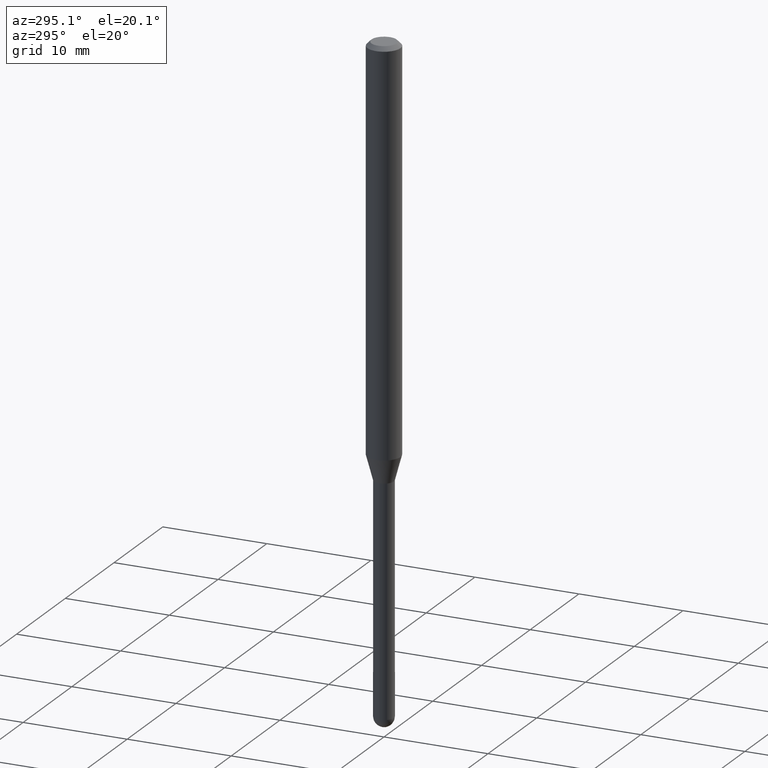
[diagram: clean part render]
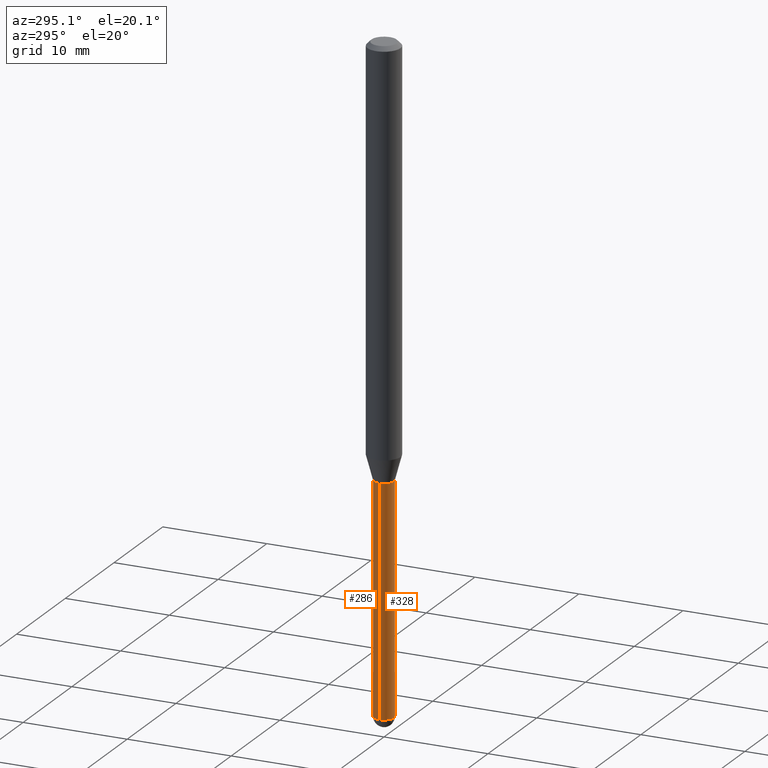
[diagram: same view with one multi-face feature highlighted, each face labeled with its STEP entity id]
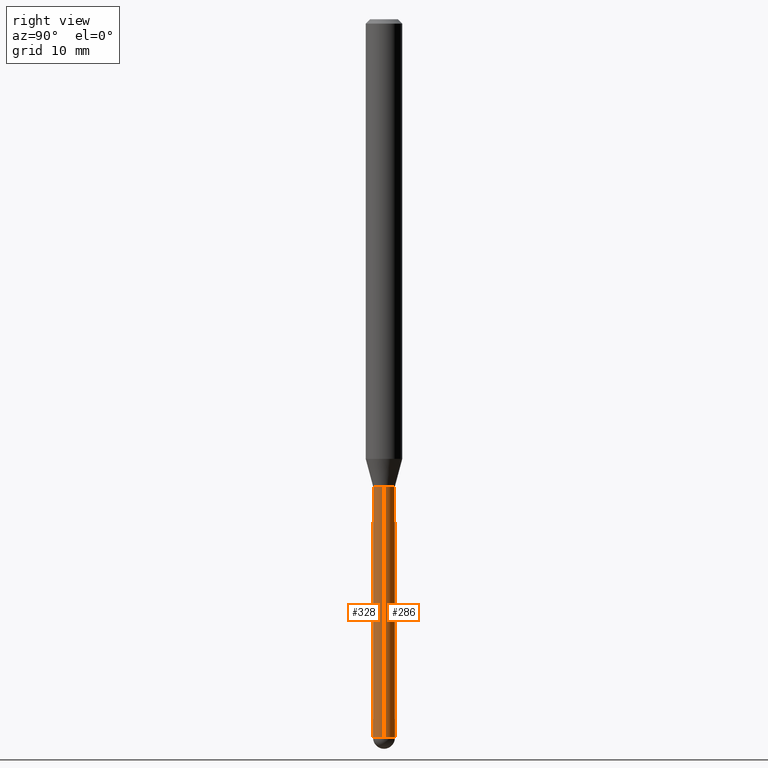
[diagram: same view with one multi-face feature highlighted, each face labeled with its STEP entity id]
A machine part, auxiliary view. The highlighted faces form ONE feature: a constant-radius fillet chain: 2 tangent blend faces with common blend radius 0.9525 mm. The faces share edges in the B-rep.
A second angle (right view) of the same feature is appended — it is thin or edge-on in the first view.
Their STEP definitions:
[1] entity #328 (Cylinder):
#1 = EDGE_CURVE ( 'NONE', #416, #306, #351, .T. ) ;
#2 = CARTESIAN_POINT ( 'NONE',  ( 6.021966935230899318E-29, -8.597772796901246653E-15, -2.462500000000000355 ) ) ;
#3 = ORIENTED_EDGE ( 'NONE', *, *, #361, .T. ) ;
#6 = CIRCLE ( 'NONE', #505, 0.03749999999999999861 ) ;
#18 = FACE_OUTER_BOUND ( 'NONE', #131, .T. ) ;
#21 = EDGE_CURVE ( 'NONE', #97, #266, #70, .T. ) ;
#32 = AXIS2_PLACEMENT_3D ( 'NONE', #259, #222, #294 ) ;
#51 = DIRECTION ( 'NONE',  ( -2.445468806185136597E-29, 3.491481338843145583E-15, 1.000000000000000000 ) ) ;
#63 = CYLINDRICAL_SURFACE ( 'NONE', #339, 0.03749999999999999861 ) ;
#70 = CIRCLE ( 'NONE', #191, 0.03749999999999999861 ) ;
#82 = DIRECTION ( 'NONE',  ( 1.000000000000000000, -6.982962677686242256E-15, 0.000000000000000000 ) ) ;
#97 = VERTEX_POINT ( 'NONE', #353 ) ;
#103 = CARTESIAN_POINT ( 'NONE',  ( 0.03749999999999999861, -5.848231242562268092E-15, -1.600000000000000089 ) ) ;
#131 = EDGE_LOOP ( 'NONE', ( #509, #501, #466, #3, #471 ) ) ;
#133 = CARTESIAN_POINT ( 'NONE',  ( -0.03749999999999999861, -6.825617943615102854E-15, -2.462500000000000355 ) ) ;
#136 = CARTESIAN_POINT ( 'NONE',  ( -0.03749999999999999861, 2.664535259100375598E-16, -1.844600658845589808E-30 ) ) ;
#139 = CARTESIAN_POINT ( 'NONE',  ( 0.000000000000000000, 0.000000000000000000, 0.000000000000000000 ) ) ;
#144 = DIRECTION ( 'NONE',  ( 1.000000000000000000, -6.982962677686266711E-15, 4.876176775795935793E-29 ) ) ;
#177 = EDGE_CURVE ( 'NONE', #180, #97, #485, .T. ) ;
#180 = VERTEX_POINT ( 'NONE', #133 ) ;
#191 = AXIS2_PLACEMENT_3D ( 'NONE', #327, #499, #375 ) ;
#215 = EDGE_CURVE ( 'NONE', #180, #416, #6, .T. ) ;
#220 = DIRECTION ( 'NONE',  ( -2.445468806185136877E-29, 3.491481338843145188E-15, 1.000000000000000000 ) ) ;
#222 = DIRECTION ( 'NONE',  ( -2.445468806185136597E-29, 3.491481338843145583E-15, 1.000000000000000000 ) ) ;
#257 = VECTOR ( 'NONE', #220, 39.37007874015748143 ) ;
#259 = CARTESIAN_POINT ( 'NONE',  ( 6.021966935230899318E-29, -8.597772796901246653E-15, -2.462500000000000355 ) ) ;
#266 = VERTEX_POINT ( 'NONE', #103 ) ;
#283 = DIRECTION ( 'NONE',  ( -2.445468806185136877E-29, 3.491481338843145188E-15, 1.000000000000000000 ) ) ;
#294 = DIRECTION ( 'NONE',  ( 1.000000000000000000, -6.982962677686242256E-15, 0.000000000000000000 ) ) ;
#306 = VERTEX_POINT ( 'NONE', #503 ) ;
#312 = CARTESIAN_POINT ( 'NONE',  ( -2.664535259099770148E-16, -0.03750000000000855427, -2.462500000000000355 ) ) ;
#325 = DIRECTION ( 'NONE',  ( -2.445468806185136597E-29, 3.491481338843145583E-15, 1.000000000000000000 ) ) ;
#327 = CARTESIAN_POINT ( 'NONE',  ( 3.912750089896218667E-29, -5.586370142149033090E-15, -1.600000000000000089 ) ) ;
#328 = ADVANCED_FACE ( 'NONE', ( #18 ), #63, .T. ) ;
#329 = LINE ( 'NONE', #455, #257 ) ;
#339 = AXIS2_PLACEMENT_3D ( 'NONE', #139, #325, #144 ) ;
#351 = CIRCLE ( 'NONE', #32, 0.03749999999999999861 ) ;
#353 = CARTESIAN_POINT ( 'NONE',  ( -0.03749999999999999861, -6.825617943615102854E-15, -1.600000000000000089 ) ) ;
#361 = EDGE_CURVE ( 'NONE', #306, #266, #329, .T. ) ;
#375 = DIRECTION ( 'NONE',  ( 1.000000000000000000, -6.982962677686268288E-15, 0.000000000000000000 ) ) ;
#410 = VECTOR ( 'NONE', #283, 39.37007874015748143 ) ;
#416 = VERTEX_POINT ( 'NONE', #312 ) ;
#455 = CARTESIAN_POINT ( 'NONE',  ( 0.03749999999999999861, -2.618611004132350016E-16, 1.828566290923475922E-30 ) ) ;
#466 = ORIENTED_EDGE ( 'NONE', *, *, #1, .T. ) ;
#471 = ORIENTED_EDGE ( 'NONE', *, *, #21, .F. ) ;
#485 = LINE ( 'NONE', #136, #410 ) ;
#499 = DIRECTION ( 'NONE',  ( -2.445468806185136597E-29, 3.491481338843145583E-15, 1.000000000000000000 ) ) ;
#501 = ORIENTED_EDGE ( 'NONE', *, *, #215, .T. ) ;
#503 = CARTESIAN_POINT ( 'NONE',  ( 0.03749999999999999861, -7.353932569938374479E-15, -2.462500000000000355 ) ) ;
#505 = AXIS2_PLACEMENT_3D ( 'NONE', #2, #51, #82 ) ;
#509 = ORIENTED_EDGE ( 'NONE', *, *, #177, .F. ) ;
[2] entity #286 (Cylinder):
#7 = DIRECTION ( 'NONE',  ( 1.000000000000000000, -6.982962677686242256E-15, 0.000000000000000000 ) ) ;
#20 = DIRECTION ( 'NONE',  ( -2.445468806185136597E-29, 3.491481338843145583E-15, 1.000000000000000000 ) ) ;
#28 = DIRECTION ( 'NONE',  ( 1.000000000000000000, -6.982962677686266711E-15, 4.876176775795935793E-29 ) ) ;
#37 = DIRECTION ( 'NONE',  ( -2.445468806185136597E-29, 3.491481338843145583E-15, 1.000000000000000000 ) ) ;
#59 = CYLINDRICAL_SURFACE ( 'NONE', #134, 0.03749999999999999861 ) ;
#60 = DIRECTION ( 'NONE',  ( 1.000000000000000000, -6.982962677686242256E-15, 0.000000000000000000 ) ) ;
#64 = CIRCLE ( 'NONE', #249, 0.03749999999999999861 ) ;
#90 = ORIENTED_EDGE ( 'NONE', *, *, #361, .F. ) ;
#96 = EDGE_LOOP ( 'NONE', ( #263, #228, #420, #90, #117 ) ) ;
#97 = VERTEX_POINT ( 'NONE', #353 ) ;
#103 = CARTESIAN_POINT ( 'NONE',  ( 0.03749999999999999861, -5.848231242562268092E-15, -1.600000000000000089 ) ) ;
#117 = ORIENTED_EDGE ( 'NONE', *, *, #298, .T. ) ;
#124 = CIRCLE ( 'NONE', #320, 0.03749999999999999861 ) ;
#133 = CARTESIAN_POINT ( 'NONE',  ( -0.03749999999999999861, -6.825617943615102854E-15, -2.462500000000000355 ) ) ;
#134 = AXIS2_PLACEMENT_3D ( 'NONE', #250, #20, #28 ) ;
#136 = CARTESIAN_POINT ( 'NONE',  ( -0.03749999999999999861, 2.664535259100375598E-16, -1.844600658845589808E-30 ) ) ;
#146 = DIRECTION ( 'NONE',  ( 1.000000000000000000, -6.982962677686268288E-15, 0.000000000000000000 ) ) ;
#177 = EDGE_CURVE ( 'NONE', #180, #97, #485, .T. ) ;
#180 = VERTEX_POINT ( 'NONE', #133 ) ;
#198 = EDGE_CURVE ( 'NONE', #264, #180, #203, .T. ) ;
#202 = CARTESIAN_POINT ( 'NONE',  ( 6.021966935230899318E-29, -8.597772796901246653E-15, -2.462500000000000355 ) ) ;
#203 = CIRCLE ( 'NONE', #229, 0.03749999999999999861 ) ;
#220 = DIRECTION ( 'NONE',  ( -2.445468806185136877E-29, 3.491481338843145188E-15, 1.000000000000000000 ) ) ;
#228 = ORIENTED_EDGE ( 'NONE', *, *, #177, .T. ) ;
#229 = AXIS2_PLACEMENT_3D ( 'NONE', #202, #37, #7 ) ;
#232 = EDGE_CURVE ( 'NONE', #266, #97, #124, .T. ) ;
#249 = AXIS2_PLACEMENT_3D ( 'NONE', #415, #324, #60 ) ;
#250 = CARTESIAN_POINT ( 'NONE',  ( 0.000000000000000000, 0.000000000000000000, 0.000000000000000000 ) ) ;
#257 = VECTOR ( 'NONE', #220, 39.37007874015748143 ) ;
#263 = ORIENTED_EDGE ( 'NONE', *, *, #198, .T. ) ;
#264 = VERTEX_POINT ( 'NONE', #365 ) ;
#266 = VERTEX_POINT ( 'NONE', #103 ) ;
#283 = DIRECTION ( 'NONE',  ( -2.445468806185136877E-29, 3.491481338843145188E-15, 1.000000000000000000 ) ) ;
#286 = ADVANCED_FACE ( 'NONE', ( #414 ), #59, .T. ) ;
#298 = EDGE_CURVE ( 'NONE', #306, #264, #64, .T. ) ;
#306 = VERTEX_POINT ( 'NONE', #503 ) ;
#320 = AXIS2_PLACEMENT_3D ( 'NONE', #448, #493, #146 ) ;
#324 = DIRECTION ( 'NONE',  ( -2.445468806185136597E-29, 3.491481338843145583E-15, 1.000000000000000000 ) ) ;
#329 = LINE ( 'NONE', #455, #257 ) ;
#353 = CARTESIAN_POINT ( 'NONE',  ( -0.03749999999999999861, -6.825617943615102854E-15, -1.600000000000000089 ) ) ;
#361 = EDGE_CURVE ( 'NONE', #306, #266, #329, .T. ) ;
#365 = CARTESIAN_POINT ( 'NONE',  ( 2.618611004132948565E-16, 0.03749999999999135275, -2.462500000000000355 ) ) ;
#410 = VECTOR ( 'NONE', #283, 39.37007874015748143 ) ;
#414 = FACE_OUTER_BOUND ( 'NONE', #96, .T. ) ;
#415 = CARTESIAN_POINT ( 'NONE',  ( 6.021966935230899318E-29, -8.597772796901246653E-15, -2.462500000000000355 ) ) ;
#420 = ORIENTED_EDGE ( 'NONE', *, *, #232, .F. ) ;
#448 = CARTESIAN_POINT ( 'NONE',  ( 3.912750089896218667E-29, -5.586370142149033090E-15, -1.600000000000000089 ) ) ;
#455 = CARTESIAN_POINT ( 'NONE',  ( 0.03749999999999999861, -2.618611004132350016E-16, 1.828566290923475922E-30 ) ) ;
#485 = LINE ( 'NONE', #136, #410 ) ;
#493 = DIRECTION ( 'NONE',  ( -2.445468806185136597E-29, 3.491481338843145583E-15, 1.000000000000000000 ) ) ;
#503 = CARTESIAN_POINT ( 'NONE',  ( 0.03749999999999999861, -7.353932569938374479E-15, -2.462500000000000355 ) ) ;